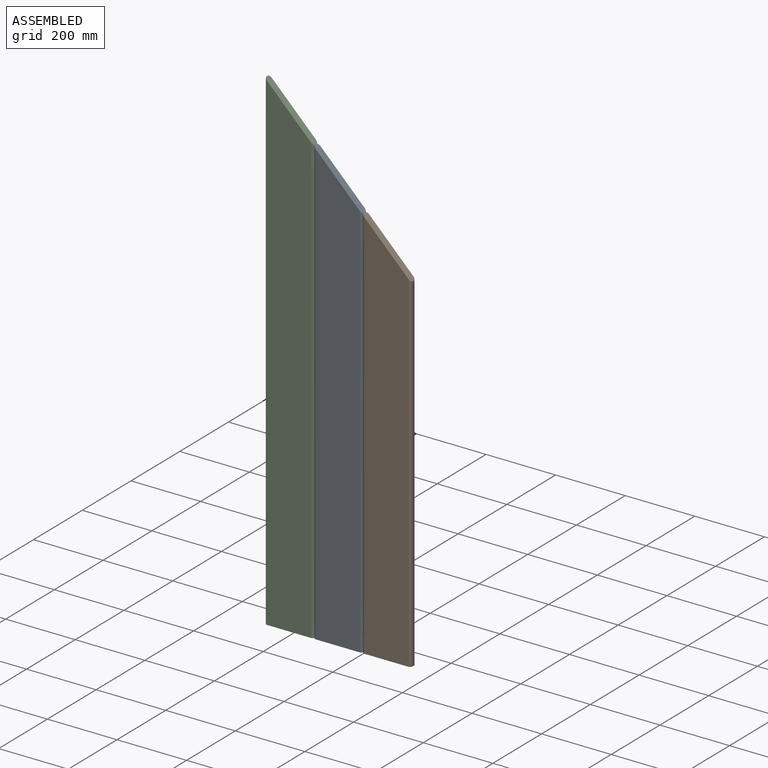
[diagram: assembled view]
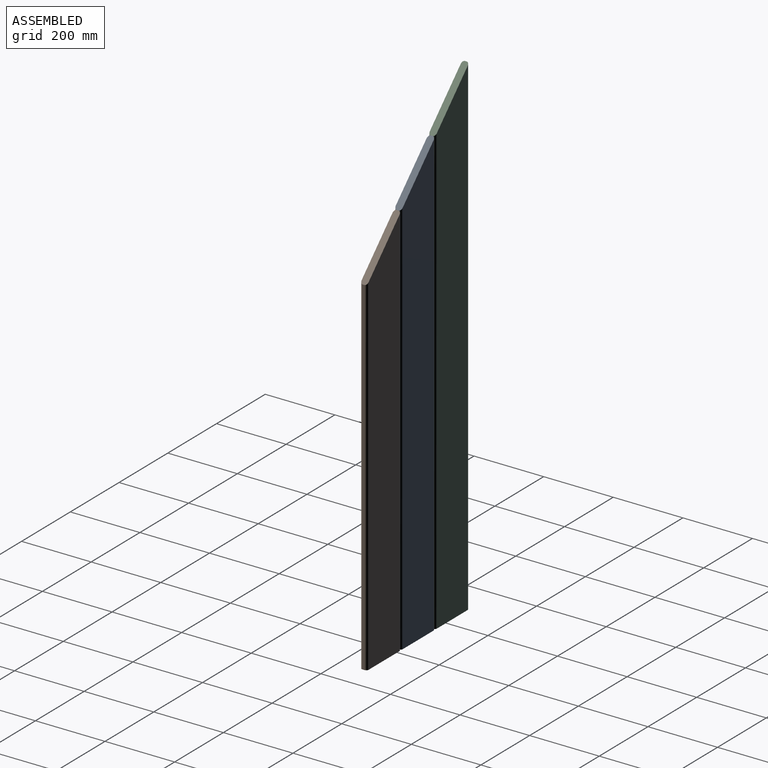
[diagram: assembled view, second angle]
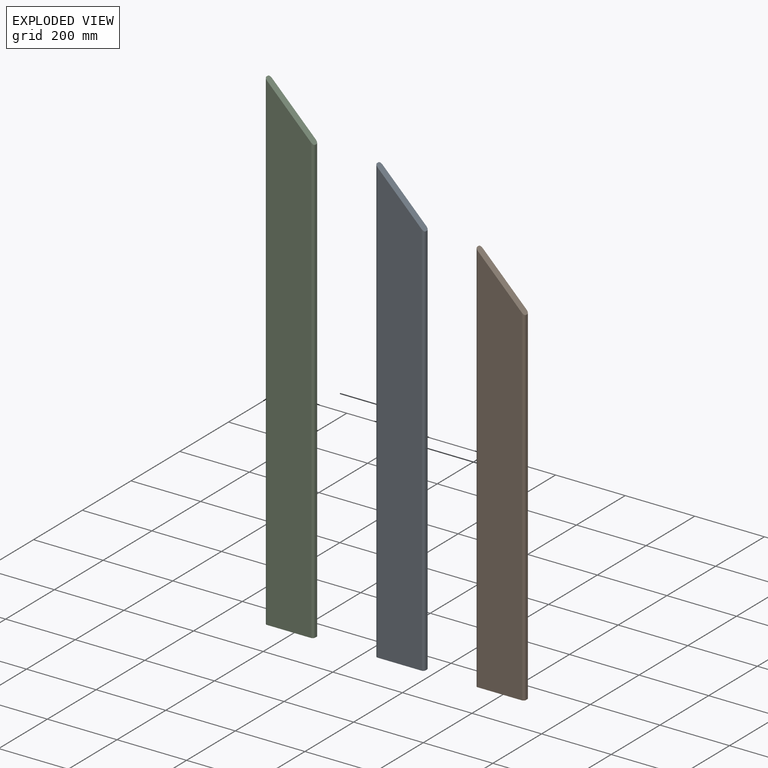
[diagram: exploded view]
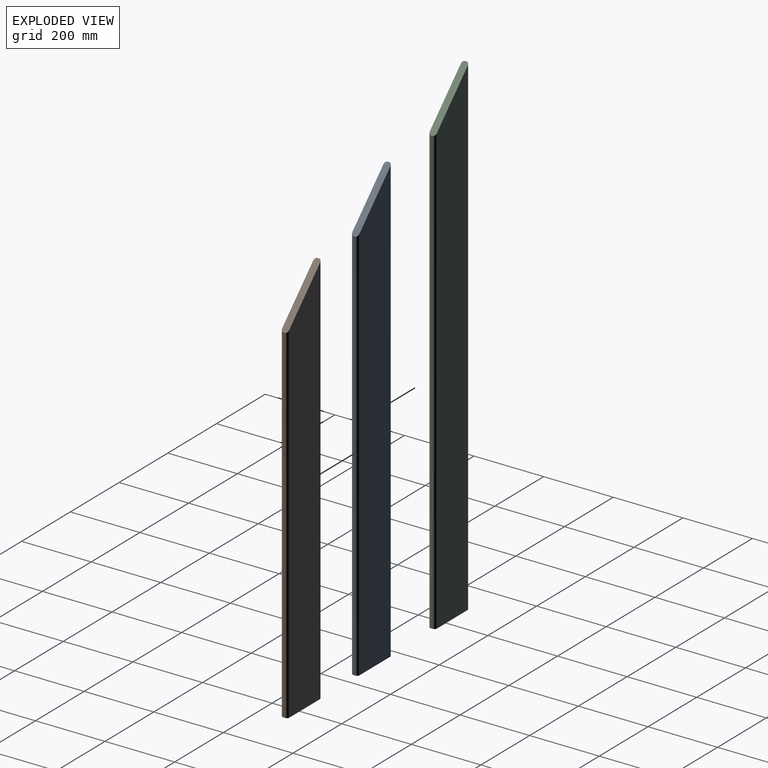
[diagram: exploded view, second angle]
ASSEMBLY  parts=3 mates=2
PART A: 10 faces, bbox 140x20x1280 mm
  f0: plane 1273x126mm, normal (0,-1,0), area 152460mm2, adj f4,f5,f6,f9
  f1: plane 1273x126mm, normal (0,1,0), area 152460mm2, adj f4,f7,f8,f9
  f2: plane 1280x6mm, normal (-1,0,0), area 7680mm2, adj f4,f5,f8,f9
  f3: plane 1140x6mm, normal (1,0,0), area 6840mm2, adj f4,f6,f7,f9
  f4: plane 140x20mm, normal (0,0,-1), area 2757.9mm2, adj f0,f1,f2,f3,f5,f6,f7,f8
  f5: cylinder r=7mm len=1280mm, axis (0,0,1), area 14046.4mm2, adj f0,f2,f4,f9
  f6: cylinder r=7mm len=1147mm, axis (0,0,-1), area 12562.9mm2, adj f0,f3,f4,f9
  f7: cylinder r=7mm len=1147mm, axis (0,0,1), area 12562.9mm2, adj f1,f3,f4,f9
  f8: cylinder r=7mm len=1280mm, axis (0,0,-1), area 14046.4mm2, adj f1,f2,f4,f9
  f9: plane 140x140mm, normal (0.71,0,0.71), area 3900.3mm2, adj f0,f1,f2,f3,f5,f6,f7,f8
PART B: 10 faces, bbox 140x20x1140 mm
  f0: plane 1133x126mm, normal (0,-1,0), area 134820mm2, adj f4,f5,f6,f9
  f1: plane 1133x126mm, normal (0,1,0), area 134820mm2, adj f4,f7,f8,f9
  f2: plane 1140x6mm, normal (-1,0,0), area 6840mm2, adj f4,f5,f8,f9
  f3: plane 1000x6mm, normal (1,0,0), area 6000mm2, adj f4,f6,f7,f9
  f4: plane 140x20mm, normal (0,0,-1), area 2757.9mm2, adj f0,f1,f2,f3,f5,f6,f7,f8
  f5: cylinder r=7mm len=1140mm, axis (0,0,1), area 12507mm2, adj f0,f2,f4,f9
  f6: cylinder r=7mm len=1007mm, axis (0,0,-1), area 11023.5mm2, adj f0,f3,f4,f9
  f7: cylinder r=7mm len=1007mm, axis (0,0,1), area 11023.5mm2, adj f1,f3,f4,f9
  f8: cylinder r=7mm len=1140mm, axis (0,0,-1), area 12507mm2, adj f1,f2,f4,f9
  f9: plane 140x140mm, normal (0.71,0,0.71), area 3900.3mm2, adj f0,f1,f2,f3,f5,f6,f7,f8
PART C: 10 faces, bbox 140x20x1420 mm
  f0: plane 1413x126mm, normal (0,-1,0), area 170100mm2, adj f4,f5,f6,f9
  f1: plane 1413x126mm, normal (0,1,0), area 170100mm2, adj f4,f7,f8,f9
  f2: plane 1420x6mm, normal (-1,0,0), area 8520mm2, adj f4,f5,f8,f9
  f3: plane 1280x6mm, normal (1,0,0), area 7680mm2, adj f4,f6,f7,f9
  f4: plane 140x20mm, normal (0,0,-1), area 2757.9mm2, adj f0,f1,f2,f3,f5,f6,f7,f8
  f5: cylinder r=7mm len=1420mm, axis (0,0,1), area 15585.7mm2, adj f0,f2,f4,f9
  f6: cylinder r=7mm len=1287mm, axis (0,0,-1), area 14102.3mm2, adj f0,f3,f4,f9
  f7: cylinder r=7mm len=1287mm, axis (0,0,1), area 14102.3mm2, adj f1,f3,f4,f9
  f8: cylinder r=7mm len=1420mm, axis (0,0,-1), area 15585.7mm2, adj f1,f2,f4,f9
  f9: plane 140x140mm, normal (0.71,0,0.71), area 3900.3mm2, adj f0,f1,f2,f3,f5,f6,f7,f8
PLACE A t=(283.37,287.09,-171.32)mm
PLACE B t=(423.37,287.09,-171.32)mm
PLACE C t=(143.37,287.09,-171.32)mm
MATE planar A.f3 <-> B.f2  axis (1,0,0) through (423.37,297.09,398.68)mm
MATE planar C.f3 <-> A.f2  axis (1,0,0) through (283.37,297.09,468.68)mm
